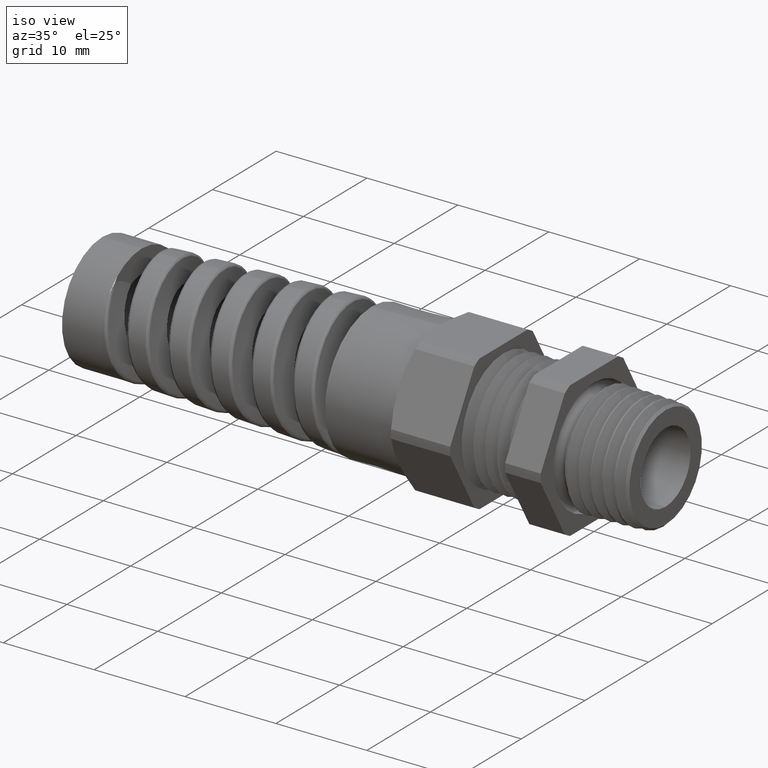
[diagram: clean part render]
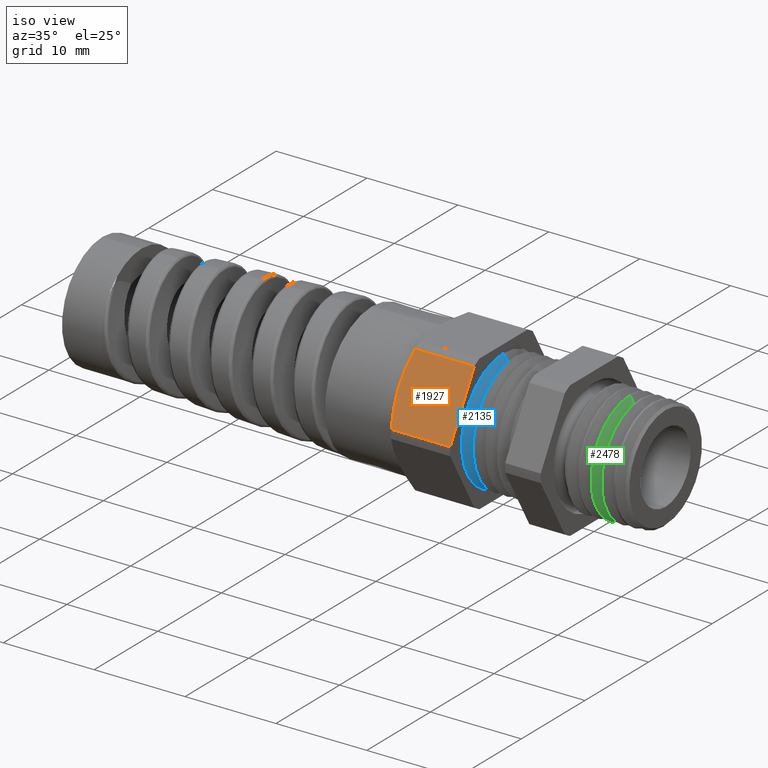
[diagram: same view with three faces highlighted in distinct colors, each labeled with its STEP entity id]
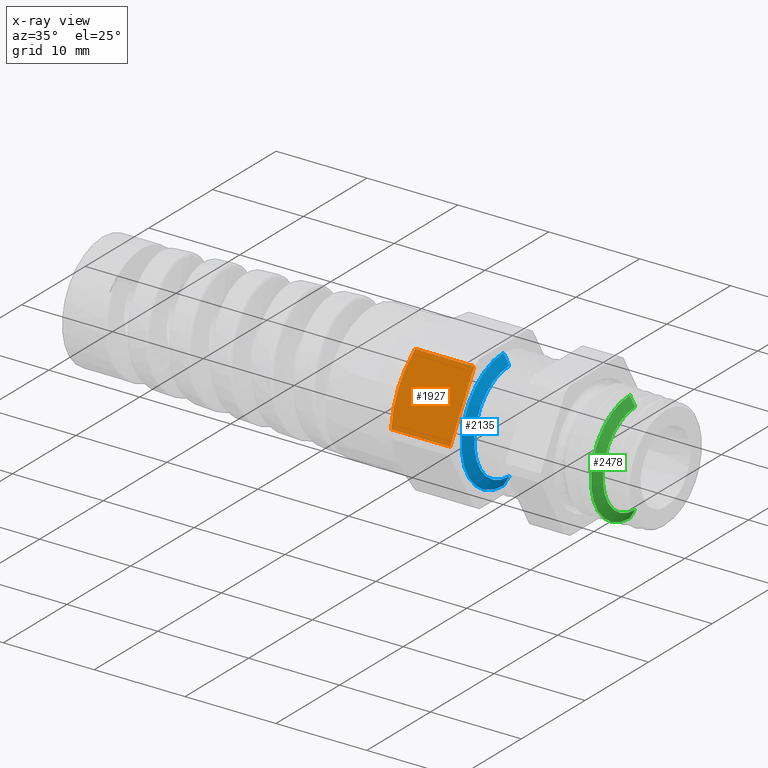
[diagram: x-ray of the same camera — body ghosted, the three highlighted faces saturated]
A machine part, iso view with three faces highlighted in distinct colors.
The next image is the same camera in x-ray (body ghosted, the three faces saturated) — at least one of them is partly hidden behind the body in this view.
Their STEP definitions:

[orange] entity #1927 — the highlighted planar face has unit normal (0, -0.866, 0.5).
#664 = VERTEX_POINT ( 'NONE', #3160 ) ;
#880 = VERTEX_POINT ( 'NONE', #3889 ) ;
#1768 = EDGE_CURVE ( 'NONE', #1983, #880, #7265, .T. ) ;
#1799 = ORIENTED_EDGE ( 'NONE', *, *, #1768, .T. ) ;
#1910 = ORIENTED_EDGE ( 'NONE', *, *, #1911, .T. ) ;
#1911 = EDGE_CURVE ( 'NONE', #880, #1923, #7402, .T. ) ;
#1920 = VERTEX_POINT ( 'NONE', #7390 ) ;
#1921 = EDGE_CURVE ( 'NONE', #1920, #1923, #7445, .T. ) ;
#1923 = VERTEX_POINT ( 'NONE', #7436 ) ;
#1925 = ORIENTED_EDGE ( 'NONE', *, *, #1921, .F. ) ;
#1927 = ADVANCED_FACE ( 'NONE', ( #7431 ), #7429, .T. ) ;
#1928 = EDGE_LOOP ( 'NONE', ( #1925, #1939, #1935, #1799, #1910 ) ) ;
#1935 = ORIENTED_EDGE ( 'NONE', *, *, #1940, .T. ) ;
#1938 = EDGE_CURVE ( 'NONE', #1920, #664, #7453, .T. ) ;
#1939 = ORIENTED_EDGE ( 'NONE', *, *, #1938, .T. ) ;
#1940 = EDGE_CURVE ( 'NONE', #664, #1983, #7448, .T. ) ;
#1983 = VERTEX_POINT ( 'NONE', #7570 ) ;
#3160 = CARTESIAN_POINT ( 'NONE',  ( -0.6687500000000000700, -0.2554774941164092400, 0.1475000000000001000 ) ) ;
#3889 = CARTESIAN_POINT ( 'NONE',  ( -0.3920833333333332800, -0.3298736633726285800, 0.01864205495973476900 ) ) ;
#7262 = DIRECTION ( 'NONE',  ( 1.000000000000000000, 0.0000000000000000000, 0.0000000000000000000 ) ) ;
#7263 = VECTOR ( 'NONE', #7262, 39.37007874015748100 ) ;
#7264 = CARTESIAN_POINT ( 'NONE',  ( -1.612607445236302800, -0.3298736633726285800, 0.01864205495973476900 ) ) ;
#7265 = LINE ( 'NONE', #7264, #7263 ) ;
#7390 = CARTESIAN_POINT ( 'NONE',  ( -0.6483118004706872600, -0.1810813248601899900, 0.2763579450402654500 ) ) ;
#7399 = DIRECTION ( 'NONE',  ( 0.0000000000000000000, 0.5000000000000004400, 0.8660254037844383700 ) ) ;
#7400 = VECTOR ( 'NONE', #7399, 39.37007874015748100 ) ;
#7401 = CARTESIAN_POINT ( 'NONE',  ( -0.3920833333333333900, -0.1905524941164090900, 0.2599533986814094900 ) ) ;
#7402 = LINE ( 'NONE', #7401, #7400 ) ;
#7425 = DIRECTION ( 'NONE',  ( 0.0000000000000000000, -0.5000000000000004400, -0.8660254037844383700 ) ) ;
#7426 = DIRECTION ( 'NONE',  ( 0.0000000000000000000, -0.8660254037844383700, 0.5000000000000004400 ) ) ;
#7427 = CARTESIAN_POINT ( 'NONE',  ( -1.612607445236302800, -0.1810813248601900500, 0.2763579450402653400 ) ) ;
#7428 = AXIS2_PLACEMENT_3D ( 'NONE', #7427, #7426, #7425 ) ;
#7429 = PLANE ( 'NONE',  #7428 ) ;
#7431 = FACE_OUTER_BOUND ( 'NONE', #1928, .T. ) ;
#7436 = CARTESIAN_POINT ( 'NONE',  ( -0.3920833333333332800, -0.1810813248601899400, 0.2763579450402654000 ) ) ;
#7442 = DIRECTION ( 'NONE',  ( 1.000000000000000000, 0.0000000000000000000, 0.0000000000000000000 ) ) ;
#7443 = VECTOR ( 'NONE', #7442, 39.37007874015748100 ) ;
#7444 = CARTESIAN_POINT ( 'NONE',  ( -1.612607445236302800, -0.1810813248601899400, 0.2763579450402654000 ) ) ;
#7445 = LINE ( 'NONE', #7444, #7443 ) ;
#7448 = B_SPLINE_CURVE_WITH_KNOTS ( 'NONE', 3,
 ( #7489, #7488, #7487, #7486, #7485, #7484 ),
 .UNSPECIFIED., .F., .F.,
 ( 4, 2, 4 ),
 ( 0.003813694281531653300, 0.005707528494126042100, 0.007601362706720430800 ),
 .UNSPECIFIED. ) ;
#7449 = CARTESIAN_POINT ( 'NONE',  ( -0.6687500000000000700, -0.2554774941164092400, 0.1475000000000001000 ) ) ;
#7450 = CARTESIAN_POINT ( 'NONE',  ( -0.6687499999999999600, -0.2303030490828603100, 0.1911034178504568100 ) ) ;
#7451 = CARTESIAN_POINT ( 'NONE',  ( -0.6610377494917055700, -0.2055539343404728400, 0.2339701420266238300 ) ) ;
#7452 = CARTESIAN_POINT ( 'NONE',  ( -0.6483118004706872600, -0.1810813248601899900, 0.2763579450402654500 ) ) ;
#7453 = B_SPLINE_CURVE_WITH_KNOTS ( 'NONE', 3,
 ( #7452, #7451, #7450, #7449 ),
 .UNSPECIFIED., .F., .F.,
 ( 4, 4 ),
 ( 2.361312121601128000E-007, 0.003813694281531653300 ),
 .UNSPECIFIED. ) ;
#7484 = CARTESIAN_POINT ( 'NONE',  ( -0.6483118004706871500, -0.3298736633726286300, 0.01864205495973479300 ) ) ;
#7485 = CARTESIAN_POINT ( 'NONE',  ( -0.6546447182807061400, -0.3176951591070877900, 0.03973584310784574600 ) ) ;
#7486 = CARTESIAN_POINT ( 'NONE',  ( -0.6597888758521443000, -0.3054192889189821200, 0.06099827398076478100 ) ) ;
#7487 = CARTESIAN_POINT ( 'NONE',  ( -0.6668553477117322700, -0.2806036620722651700, 0.1039802005009487200 ) ) ;
#7488 = CARTESIAN_POINT ( 'NONE',  ( -0.6687499999999998400, -0.2679795915325347000, 0.1258457320740951600 ) ) ;
#7489 = CARTESIAN_POINT ( 'NONE',  ( -0.6687500000000000700, -0.2554774941164092400, 0.1475000000000001000 ) ) ;
#7570 = CARTESIAN_POINT ( 'NONE',  ( -0.6483118004706871500, -0.3298736633726286300, 0.01864205495973479300 ) ) ;

[blue] entity #2135 — the highlighted conical surface has half-angle 60 deg.
#507 = DIRECTION ( 'NONE',  ( 0.0000000000000000000, 0.0000000000000000000, -1.000000000000000000 ) ) ;
#508 = DIRECTION ( 'NONE',  ( 1.000000000000000000, 0.0000000000000000000, 0.0000000000000000000 ) ) ;
#509 = CARTESIAN_POINT ( 'NONE',  ( -0.3920833333333332800, 0.0000000000000000000, 0.0000000000000000000 ) ) ;
#510 = AXIS2_PLACEMENT_3D ( 'NONE', #509, #508, #507 ) ;
#511 = CIRCLE ( 'NONE', #510, 0.2596999999999999900 ) ;
#1573 = VERTEX_POINT ( 'NONE', #6280 ) ;
#1703 = EDGE_CURVE ( 'NONE', #1711, #1706, #7143, .T. ) ;
#1706 = VERTEX_POINT ( 'NONE', #7131 ) ;
#1707 = VERTEX_POINT ( 'NONE', #7130 ) ;
#1710 = EDGE_CURVE ( 'NONE', #1707, #1573, #7129, .T. ) ;
#1711 = VERTEX_POINT ( 'NONE', #7125 ) ;
#2119 = EDGE_CURVE ( 'NONE', #1711, #1707, #7655, .T. ) ;
#2129 = ORIENTED_EDGE ( 'NONE', *, *, #1703, .T. ) ;
#2131 = ORIENTED_EDGE ( 'NONE', *, *, #2119, .F. ) ;
#2133 = ORIENTED_EDGE ( 'NONE', *, *, #1710, .F. ) ;
#2134 = EDGE_LOOP ( 'NONE', ( #2133, #2131, #2129, #2138 ) ) ;
#2135 = ADVANCED_FACE ( 'NONE', ( #7692 ), #7691, .T. ) ;
#2138 = ORIENTED_EDGE ( 'NONE', *, *, #7799, .T. ) ;
#6280 = CARTESIAN_POINT ( 'NONE',  ( -0.3920833333333332800, 3.180407737385675900E-017, -0.2596999999999999900 ) ) ;
#7125 = CARTESIAN_POINT ( 'NONE',  ( -0.3670833449895862200, 2.915264051327779200E-017, 0.2163987499999999500 ) ) ;
#7126 = DIRECTION ( 'NONE',  ( -0.4999999999999960000, 1.060575238724909600E-016, -0.8660254037844409300 ) ) ;
#7127 = VECTOR ( 'NONE', #7126, 39.37007874015748100 ) ;
#7128 = CARTESIAN_POINT ( 'NONE',  ( -0.3920833333333332800, 3.180407737385675900E-017, -0.2596999999999999900 ) ) ;
#7129 = LINE ( 'NONE', #7128, #7127 ) ;
#7130 = CARTESIAN_POINT ( 'NONE',  ( -0.3670833449895862200, 0.0000000000000000000, -0.2163987499999999500 ) ) ;
#7131 = CARTESIAN_POINT ( 'NONE',  ( -0.3920833333333332800, 0.0000000000000000000, 0.2596999999999999900 ) ) ;
#7137 = DIRECTION ( 'NONE',  ( -0.4999999999999960000, 0.0000000000000000000, 0.8660254037844409300 ) ) ;
#7138 = VECTOR ( 'NONE', #7137, 39.37007874015748100 ) ;
#7139 = CARTESIAN_POINT ( 'NONE',  ( -0.3920833333333332800, 0.0000000000000000000, 0.2596999999999999900 ) ) ;
#7143 = LINE ( 'NONE', #7139, #7138 ) ;
#7647 = DIRECTION ( 'NONE',  ( 0.0000000000000000000, 0.0000000000000000000, -1.000000000000000000 ) ) ;
#7648 = DIRECTION ( 'NONE',  ( 1.000000000000000000, 0.0000000000000000000, 0.0000000000000000000 ) ) ;
#7649 = CARTESIAN_POINT ( 'NONE',  ( -0.3670833449895862200, 0.0000000000000000000, 0.0000000000000000000 ) ) ;
#7650 = AXIS2_PLACEMENT_3D ( 'NONE', #7649, #7648, #7647 ) ;
#7655 = CIRCLE ( 'NONE', #7650, 0.2163987499999999500 ) ;
#7687 = DIRECTION ( 'NONE',  ( 0.0000000000000000000, 0.0000000000000000000, 1.000000000000000000 ) ) ;
#7688 = DIRECTION ( 'NONE',  ( -1.000000000000000000, 0.0000000000000000000, 0.0000000000000000000 ) ) ;
#7689 = AXIS2_PLACEMENT_3D ( 'NONE', #7696, #7688, #7687 ) ;
#7691 = CONICAL_SURFACE ( 'NONE', #7689, 0.2596999999999999900, 1.047197551196602300 ) ;
#7692 = FACE_OUTER_BOUND ( 'NONE', #2134, .T. ) ;
#7696 = CARTESIAN_POINT ( 'NONE',  ( -0.3920833333333332800, 0.0000000000000000000, 0.0000000000000000000 ) ) ;
#7799 = EDGE_CURVE ( 'NONE', #1706, #1573, #511, .T. ) ;

[green] entity #2478 — the highlighted conical surface has half-angle 60 deg.
#1375 = EDGE_CURVE ( 'NONE', #2811, #2888, #4473, .T. ) ;
#2452 = ORIENTED_EDGE ( 'NONE', *, *, #2896, .F. ) ;
#2453 = ORIENTED_EDGE ( 'NONE', *, *, #2891, .T. ) ;
#2458 = ORIENTED_EDGE ( 'NONE', *, *, #2459, .T. ) ;
#2459 = EDGE_CURVE ( 'NONE', #2797, #2821, #8034, .T. ) ;
#2467 = ORIENTED_EDGE ( 'NONE', *, *, #1375, .T. ) ;
#2476 = EDGE_LOOP ( 'NONE', ( #2452, #2458, #2453, #2467 ) ) ;
#2478 = ADVANCED_FACE ( 'NONE', ( #7996 ), #8001, .T. ) ;
#2797 = VERTEX_POINT ( 'NONE', #9714 ) ;
#2811 = VERTEX_POINT ( 'NONE', #9751 ) ;
#2821 = VERTEX_POINT ( 'NONE', #9736 ) ;
#2888 = VERTEX_POINT ( 'NONE', #9877 ) ;
#2891 = EDGE_CURVE ( 'NONE', #2821, #2811, #9875, .T. ) ;
#2896 = EDGE_CURVE ( 'NONE', #2797, #2888, #9864, .T. ) ;
#4465 = DIRECTION ( 'NONE',  ( 0.0000000000000000000, 0.0000000000000000000, 1.000000000000000000 ) ) ;
#4466 = DIRECTION ( 'NONE',  ( 1.000000000000000000, 0.0000000000000000000, 0.0000000000000000000 ) ) ;
#4467 = CARTESIAN_POINT ( 'NONE',  ( 0.1553486303241054200, 0.0000000000000000000, 0.0000000000000000000 ) ) ;
#4468 = AXIS2_PLACEMENT_3D ( 'NONE', #4467, #4466, #4465 ) ;
#4473 = CIRCLE ( 'NONE', #4468, 0.2409320529504523600 ) ;
#7991 = DIRECTION ( 'NONE',  ( 0.0000000000000000000, 0.0000000000000000000, 1.000000000000000000 ) ) ;
#7992 = DIRECTION ( 'NONE',  ( -1.000000000000000000, 0.0000000000000000000, 0.0000000000000000000 ) ) ;
#7993 = CARTESIAN_POINT ( 'NONE',  ( 0.1530000000000000200, 0.0000000000000000000, 0.0000000000000000000 ) ) ;
#7994 = AXIS2_PLACEMENT_3D ( 'NONE', #7993, #7992, #7991 ) ;
#7996 = FACE_OUTER_BOUND ( 'NONE', #2476, .T. ) ;
#8001 = CONICAL_SURFACE ( 'NONE', #7994, 0.2450000000000000000, 1.047197551196603600 ) ;
#8026 = DIRECTION ( 'NONE',  ( 0.0000000000000000000, 0.0000000000000000000, 1.000000000000000000 ) ) ;
#8027 = DIRECTION ( 'NONE',  ( -1.000000000000000000, 0.0000000000000000000, 0.0000000000000000000 ) ) ;
#8028 = CARTESIAN_POINT ( 'NONE',  ( 0.1783924526490033900, 0.0000000000000000000, 0.0000000000000000000 ) ) ;
#8029 = AXIS2_PLACEMENT_3D ( 'NONE', #8028, #8027, #8026 ) ;
#8034 = CIRCLE ( 'NONE', #8029, 0.2010189818831386300 ) ;
#9714 = CARTESIAN_POINT ( 'NONE',  ( 0.1783924526490033900, 2.706169600944087800E-017, -0.2010189818831386300 ) ) ;
#9736 = CARTESIAN_POINT ( 'NONE',  ( 0.1783924526490033900, 0.0000000000000000000, 0.2010189818831386300 ) ) ;
#9751 = CARTESIAN_POINT ( 'NONE',  ( 0.1553486303241054200, 0.0000000000000000000, 0.2409320529504523600 ) ) ;
#9861 = DIRECTION ( 'NONE',  ( -0.4999999999999948400, 1.060575238724910500E-016, -0.8660254037844417100 ) ) ;
#9862 = VECTOR ( 'NONE', #9861, 39.37007874015748100 ) ;
#9863 = CARTESIAN_POINT ( 'NONE',  ( 0.1530000000000000200, 3.000384657911014900E-017, -0.2450000000000000000 ) ) ;
#9864 = LINE ( 'NONE', #9863, #9862 ) ;
#9872 = DIRECTION ( 'NONE',  ( -0.4999999999999948400, 0.0000000000000000000, 0.8660254037844417100 ) ) ;
#9873 = VECTOR ( 'NONE', #9872, 39.37007874015748100 ) ;
#9874 = CARTESIAN_POINT ( 'NONE',  ( 0.1530000000000000200, 0.0000000000000000000, 0.2450000000000000000 ) ) ;
#9875 = LINE ( 'NONE', #9874, #9873 ) ;
#9877 = CARTESIAN_POINT ( 'NONE',  ( 0.1553486303241054200, 2.951342603201837700E-017, -0.2409320529504523600 ) ) ;